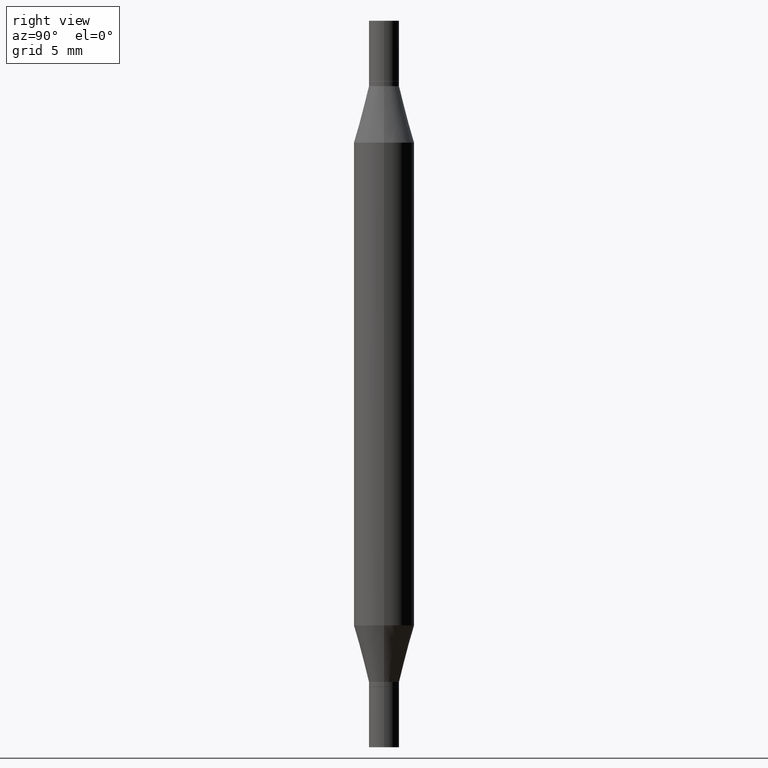
[diagram: clean part render]
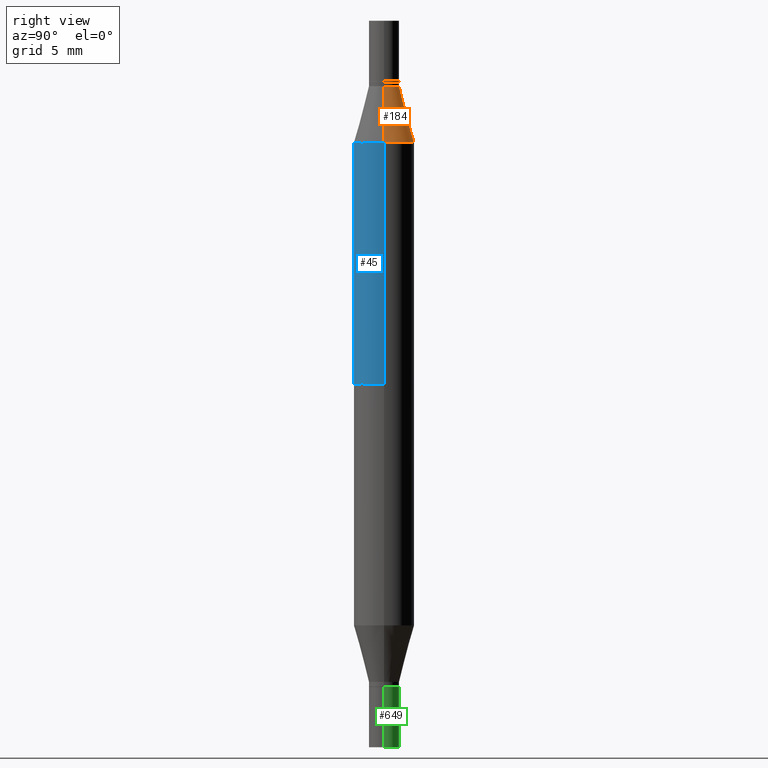
[diagram: same view with three faces highlighted in distinct colors, each labeled with its STEP entity id]
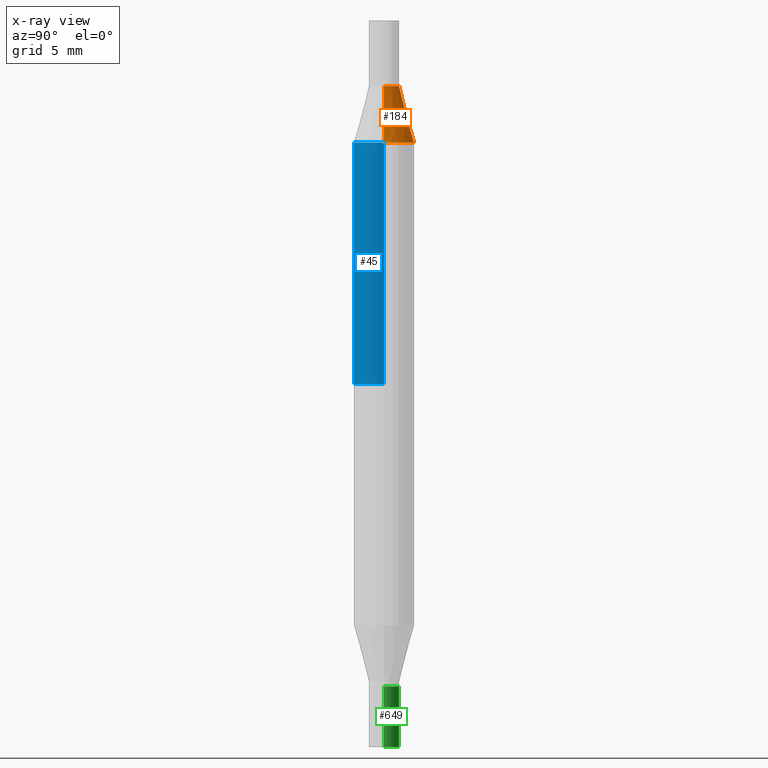
[diagram: x-ray of the same camera — body ghosted, the three highlighted faces saturated]
A machine part, right view with three faces highlighted in distinct colors.
The next image is the same camera in x-ray (body ghosted, the three faces saturated) — at least one of them is partly hidden behind the body in this view.
Their STEP definitions:

[orange] entity #184 — the highlighted conical surface has half-angle 15 deg.
#18 = CARTESIAN_POINT ( 'NONE',  ( -0.03124999999999992367, -2.567603083009074019E-16, -0.1349999999999997868 ) ) ;
#41 = CIRCLE ( 'NONE', #226, 0.03124999999999992367 ) ;
#112 = DIRECTION ( 'NONE',  ( 0.2588190451025224048, -5.180148453816013512E-15, -0.9659258262890678681 ) ) ;
#170 = DIRECTION ( 'NONE',  ( 2.445468806185136597E-29, 3.491805094961124077E-15, 1.000000000000000000 ) ) ;
#176 = CIRCLE ( 'NONE', #597, 0.06250000000000000000 ) ;
#179 = DIRECTION ( 'NONE',  ( -2.445468806185136597E-29, -3.491805094961124077E-15, -1.000000000000000000 ) ) ;
#180 = ORIENTED_EDGE ( 'NONE', *, *, #778, .F. ) ;
#184 = ADVANCED_FACE ( 'NONE', ( #490 ), #694, .T. ) ;
#190 = EDGE_CURVE ( 'NONE', #636, #905, #336, .T. ) ;
#195 = CARTESIAN_POINT ( 'NONE',  ( 3.338064920442711275E-29, -4.711508707312672701E-16, -0.1349999999999997868 ) ) ;
#226 = AXIS2_PLACEMENT_3D ( 'NONE', #668, #970, #596 ) ;
#237 = DIRECTION ( 'NONE',  ( -0.2588190451025224048, -1.597197180879706043E-15, -0.9659258262890678681 ) ) ;
#290 = AXIS2_PLACEMENT_3D ( 'NONE', #195, #179, #423 ) ;
#336 = LINE ( 'NONE', #348, #385 ) ;
#348 = CARTESIAN_POINT ( 'NONE',  ( 0.03124999999999992367, -6.893684544089624146E-16, -0.1349999999999997868 ) ) ;
#385 = VECTOR ( 'NONE', #112, 39.37007874015748143 ) ;
#423 = DIRECTION ( 'NONE',  ( 1.000000000000000000, -6.982962677686265133E-15, 0.000000000000000000 ) ) ;
#433 = EDGE_CURVE ( 'NONE', #656, #908, #699, .T. ) ;
#441 = CARTESIAN_POINT ( 'NONE',  ( 0.03124999999999992367, -6.893684544089624146E-16, -0.1349999999999997868 ) ) ;
#490 = FACE_OUTER_BOUND ( 'NONE', #813, .T. ) ;
#519 = ORIENTED_EDGE ( 'NONE', *, *, #573, .T. ) ;
#573 = EDGE_CURVE ( 'NONE', #905, #908, #176, .T. ) ;
#581 = VECTOR ( 'NONE', #237, 39.37007874015748143 ) ;
#583 = CARTESIAN_POINT ( 'NONE',  ( -0.03124999999999992367, -2.401742340998409702E-16, -0.1349999999999997868 ) ) ;
#596 = DIRECTION ( 'NONE',  ( 1.000000000000000000, -6.982962677686265133E-15, 0.000000000000000000 ) ) ;
#597 = AXIS2_PLACEMENT_3D ( 'NONE', #931, #170, #627 ) ;
#601 = ORIENTED_EDGE ( 'NONE', *, *, #433, .F. ) ;
#627 = DIRECTION ( 'NONE',  ( 1.000000000000000000, -6.982962677686266711E-15, 0.000000000000000000 ) ) ;
#636 = VERTEX_POINT ( 'NONE', #441 ) ;
#637 = CARTESIAN_POINT ( 'NONE',  ( -0.06250000000000000000, -4.496070591368817046E-16, -0.2516265877365266856 ) ) ;
#656 = VERTEX_POINT ( 'NONE', #583 ) ;
#668 = CARTESIAN_POINT ( 'NONE',  ( 3.338064920442711275E-29, -4.711508707312672701E-16, -0.1349999999999997868 ) ) ;
#694 = CONICAL_SURFACE ( 'NONE', #290, 0.03124999999999992367, 0.2617993877991511287 ) ;
#699 = LINE ( 'NONE', #18, #581 ) ;
#778 = EDGE_CURVE ( 'NONE', #636, #656, #41, .T. ) ;
#802 = ORIENTED_EDGE ( 'NONE', *, *, #190, .T. ) ;
#813 = EDGE_LOOP ( 'NONE', ( #601, #180, #802, #519 ) ) ;
#842 = CARTESIAN_POINT ( 'NONE',  ( 0.06250000000000000000, -1.314823351352993998E-15, -0.2516265877365266856 ) ) ;
#905 = VERTEX_POINT ( 'NONE', #842 ) ;
#908 = VERTEX_POINT ( 'NONE', #637 ) ;
#931 = CARTESIAN_POINT ( 'NONE',  ( 3.052858238161220135E-29, -8.783881839976021314E-16, -0.2516265877365266856 ) ) ;
#970 = DIRECTION ( 'NONE',  ( 2.445468806185136597E-29, 3.491805094961124077E-15, 1.000000000000000000 ) ) ;

[blue] entity #45 — the highlighted cylindrical surface (edge-blend (fillet) strip) has radius 1.5875 mm, axis along (-0, -0, -1).
#2 = VERTEX_POINT ( 'NONE', #670 ) ;
#19 = EDGE_CURVE ( 'NONE', #2, #273, #753, .T. ) ;
#45 = ADVANCED_FACE ( 'NONE', ( #157 ), #712, .T. ) ;
#157 = FACE_OUTER_BOUND ( 'NONE', #844, .T. ) ;
#205 = ORIENTED_EDGE ( 'NONE', *, *, #819, .F. ) ;
#213 = DIRECTION ( 'NONE',  ( -0.000000000000000000, -3.491643216902134830E-15, -1.000000000000000000 ) ) ;
#251 = DIRECTION ( 'NONE',  ( 1.000000000000000000, -6.982962677686262766E-15, 0.000000000000000000 ) ) ;
#273 = VERTEX_POINT ( 'NONE', #359 ) ;
#283 = CARTESIAN_POINT ( 'NONE',  ( 3.052858238161220135E-29, -8.783881839976021314E-16, -0.2516265877365266856 ) ) ;
#286 = DIRECTION ( 'NONE',  ( 1.000000000000000000, -6.982962677686266711E-15, 0.000000000000000000 ) ) ;
#353 = ORIENTED_EDGE ( 'NONE', *, *, #725, .F. ) ;
#359 = CARTESIAN_POINT ( 'NONE',  ( -0.06250000000000000000, -1.319718469204259197E-15, -0.7499999999999997780 ) ) ;
#373 = DIRECTION ( 'NONE',  ( -2.445468806185136877E-29, -3.491805094961123683E-15, -1.000000000000000000 ) ) ;
#386 = CARTESIAN_POINT ( 'NONE',  ( 0.000000000000000000, -5.237464825353201062E-15, -1.499999999999999556 ) ) ;
#387 = CIRCLE ( 'NONE', #438, 0.06250000000000000000 ) ;
#392 = DIRECTION ( 'NONE',  ( -2.445468806185136597E-29, -3.491805094961124077E-15, -1.000000000000000000 ) ) ;
#413 = DIRECTION ( 'NONE',  ( -2.445468806185136877E-29, -3.491805094961123683E-15, -1.000000000000000000 ) ) ;
#438 = AXIS2_PLACEMENT_3D ( 'NONE', #283, #822, #286 ) ;
#457 = LINE ( 'NONE', #537, #584 ) ;
#535 = EDGE_CURVE ( 'NONE', #908, #273, #552, .T. ) ;
#537 = CARTESIAN_POINT ( 'NONE',  ( 0.06250000000000000000, -5.673899992708591942E-15, -1.499999999999999556 ) ) ;
#547 = DIRECTION ( 'NONE',  ( 0.000000000000000000, 1.000000000000000000, -4.370956789862821150E-15 ) ) ;
#552 = LINE ( 'NONE', #935, #807 ) ;
#584 = VECTOR ( 'NONE', #373, 39.37007874015748143 ) ;
#637 = CARTESIAN_POINT ( 'NONE',  ( -0.06250000000000000000, -4.496070591368817046E-16, -0.2516265877365266856 ) ) ;
#670 = CARTESIAN_POINT ( 'NONE',  ( 0.06250000000000000000, -2.184934761420371392E-15, -0.7499999999999997780 ) ) ;
#712 = CYLINDRICAL_SURFACE ( 'NONE', #960, 0.06250000000000000000 ) ;
#725 = EDGE_CURVE ( 'NONE', #908, #905, #387, .T. ) ;
#745 = ORIENTED_EDGE ( 'NONE', *, *, #535, .T. ) ;
#749 = ORIENTED_EDGE ( 'NONE', *, *, #19, .F. ) ;
#753 = CIRCLE ( 'NONE', #975, 0.06250000000000000000 ) ;
#807 = VECTOR ( 'NONE', #413, 39.37007874015748143 ) ;
#819 = EDGE_CURVE ( 'NONE', #905, #2, #457, .T. ) ;
#822 = DIRECTION ( 'NONE',  ( 2.445468806185136597E-29, 3.491805094961124077E-15, 1.000000000000000000 ) ) ;
#842 = CARTESIAN_POINT ( 'NONE',  ( 0.06250000000000000000, -1.314823351352993998E-15, -0.2516265877365266856 ) ) ;
#844 = EDGE_LOOP ( 'NONE', ( #353, #745, #749, #205 ) ) ;
#903 = CARTESIAN_POINT ( 'NONE',  ( 1.834101604638851887E-29, -2.618611004132358299E-15, -0.7499999999999997780 ) ) ;
#905 = VERTEX_POINT ( 'NONE', #842 ) ;
#908 = VERTEX_POINT ( 'NONE', #637 ) ;
#935 = CARTESIAN_POINT ( 'NONE',  ( -0.06250000000000000000, -4.808683700492480339E-15, -1.499999999999999556 ) ) ;
#960 = AXIS2_PLACEMENT_3D ( 'NONE', #386, #392, #251 ) ;
#975 = AXIS2_PLACEMENT_3D ( 'NONE', #903, #213, #547 ) ;

[green] entity #649 — the highlighted cylindrical surface (edge-blend (fillet) strip) has radius 0.7937 mm, axis along (-0, 0, 1).
#24 = CARTESIAN_POINT ( 'NONE',  ( 3.668203209277704895E-29, -5.237222008264718177E-15, -1.500000000000000222 ) ) ;
#49 = LINE ( 'NONE', #344, #579 ) ;
#53 = DIRECTION ( 'NONE',  ( -2.445468806185136597E-29, 3.491481338843145583E-15, 1.000000000000000000 ) ) ;
#91 = EDGE_CURVE ( 'NONE', #760, #338, #416, .T. ) ;
#103 = DIRECTION ( 'NONE',  ( -2.445468806185136597E-29, 3.491481338843145583E-15, 1.000000000000000000 ) ) ;
#125 = ORIENTED_EDGE ( 'NONE', *, *, #91, .T. ) ;
#139 = ORIENTED_EDGE ( 'NONE', *, *, #262, .F. ) ;
#203 = CARTESIAN_POINT ( 'NONE',  ( 0.03125000000000000000, -5.455439591942414011E-15, -1.500000000000000222 ) ) ;
#216 = VERTEX_POINT ( 'NONE', #946 ) ;
#253 = CARTESIAN_POINT ( 'NONE',  ( 3.362519608504562821E-29, -4.800786840909326507E-15, -1.375000000000000222 ) ) ;
#255 = EDGE_CURVE ( 'NONE', #338, #701, #49, .T. ) ;
#262 = EDGE_CURVE ( 'NONE', #760, #216, #650, .T. ) ;
#338 = VERTEX_POINT ( 'NONE', #846 ) ;
#344 = CARTESIAN_POINT ( 'NONE',  ( -0.03125000000000000000, 2.220446049250313081E-16, -1.537167215704658057E-30 ) ) ;
#416 = CIRCLE ( 'NONE', #544, 0.03125000000000000000 ) ;
#436 = CARTESIAN_POINT ( 'NONE',  ( 0.000000000000000000, 0.000000000000000000, 0.000000000000000000 ) ) ;
#449 = VECTOR ( 'NONE', #815, 39.37007874015748143 ) ;
#453 = ORIENTED_EDGE ( 'NONE', *, *, #956, .F. ) ;
#531 = CIRCLE ( 'NONE', #615, 0.03125000000000000000 ) ;
#544 = AXIS2_PLACEMENT_3D ( 'NONE', #24, #103, #932 ) ;
#579 = VECTOR ( 'NONE', #741, 39.37007874015748143 ) ;
#589 = CARTESIAN_POINT ( 'NONE',  ( -0.03125000000000000000, -4.796959819661991034E-15, -1.375000000000000222 ) ) ;
#615 = AXIS2_PLACEMENT_3D ( 'NONE', #253, #646, #715 ) ;
#646 = DIRECTION ( 'NONE',  ( -2.445468806185136597E-29, 3.491481338843145583E-15, 1.000000000000000000 ) ) ;
#649 = ADVANCED_FACE ( 'NONE', ( #750 ), #653, .T. ) ;
#650 = LINE ( 'NONE', #738, #449 ) ;
#653 = CYLINDRICAL_SURFACE ( 'NONE', #713, 0.03125000000000000000 ) ;
#681 = EDGE_LOOP ( 'NONE', ( #125, #911, #453, #139 ) ) ;
#701 = VERTEX_POINT ( 'NONE', #589 ) ;
#713 = AXIS2_PLACEMENT_3D ( 'NONE', #436, #53, #900 ) ;
#715 = DIRECTION ( 'NONE',  ( 1.000000000000000000, -6.982962677686262766E-15, 0.000000000000000000 ) ) ;
#738 = CARTESIAN_POINT ( 'NONE',  ( 0.03125000000000000000, -2.182175836776958347E-16, 1.523805242436229935E-30 ) ) ;
#741 = DIRECTION ( 'NONE',  ( -2.445468806185136877E-29, 3.491481338843145188E-15, 1.000000000000000000 ) ) ;
#750 = FACE_OUTER_BOUND ( 'NONE', #681, .T. ) ;
#760 = VERTEX_POINT ( 'NONE', #203 ) ;
#815 = DIRECTION ( 'NONE',  ( -2.445468806185136877E-29, 3.491481338843145188E-15, 1.000000000000000000 ) ) ;
#846 = CARTESIAN_POINT ( 'NONE',  ( -0.03125000000000000000, -4.796959819661991034E-15, -1.500000000000000222 ) ) ;
#900 = DIRECTION ( 'NONE',  ( 1.000000000000000000, -6.982962677686266711E-15, 4.876176775795935793E-29 ) ) ;
#911 = ORIENTED_EDGE ( 'NONE', *, *, #255, .T. ) ;
#932 = DIRECTION ( 'NONE',  ( 1.000000000000000000, -6.982962677686262766E-15, 0.000000000000000000 ) ) ;
#946 = CARTESIAN_POINT ( 'NONE',  ( 0.03125000000000000000, -5.019004424587021553E-15, -1.375000000000000222 ) ) ;
#956 = EDGE_CURVE ( 'NONE', #216, #701, #531, .T. ) ;